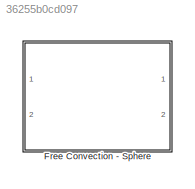
MODEL slx_36255b0cd097
KIND library
CONFIG AbsTol = auto
CONFIG FixedStep = auto
CONFIG MaxStep = auto
CONFIG MinStep = auto
CONFIG RelTol = 1e-3
CONFIG SampleTimeConstraint = Unconstrained
CONFIG Solver = ode45
CONFIG SolverMode = Auto
CONFIG SolverName = ode45
CONFIG StartTime = 0.0
CONFIG StopTime = 10.0
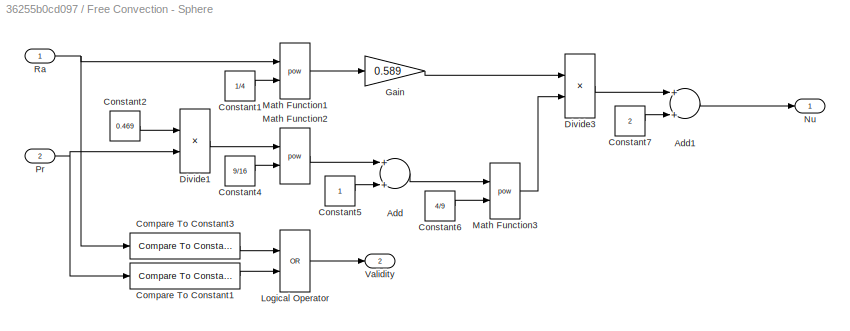
BLOCK [SubSystem] Free Convection - Sphere
  Ports = [2, 2]
  RequestExecContextInheritance = off
BLOCK [Sum] Free Convection - Sphere/Add
  InputSameDT = off
  OutDataTypeStr = Inherit: Inherit via internal rule
  Ports = [2, 1]
  SaturateOnIntegerOverflow = off
BLOCK [Sum] Free Convection - Sphere/Add1
  InputSameDT = off
  OutDataTypeStr = Inherit: Inherit via internal rule
  Ports = [2, 1]
  SaturateOnIntegerOverflow = off
BLOCK [Reference] Free Convection - Sphere/Compare To Constant1  REF=simulink/Logic and Bit
Operations/Compare
To Constant
  OutDataTypeStr = boolean
  Ports = [1, 1]
  SourceBlock = simulink/Logic and Bit\nOperations/Compare\nTo Constant
  SourceType = Compare To Constant
  ZeroCross = on
  const = 0.7
  relop = <
BLOCK [Reference] Free Convection - Sphere/Compare To Constant3  REF=simulink/Logic and Bit
Operations/Compare
To Constant
  OutDataTypeStr = boolean
  Ports = [1, 1]
  SourceBlock = simulink/Logic and Bit\nOperations/Compare\nTo Constant
  SourceType = Compare To Constant
  ZeroCross = on
  const = 10^11
  relop = >
BLOCK [Constant] Free Convection - Sphere/Constant1
  Value = 1/4
BLOCK [Constant] Free Convection - Sphere/Constant2
  Value = 0.469
BLOCK [Constant] Free Convection - Sphere/Constant4
  Value = 9/16
BLOCK [Constant] Free Convection - Sphere/Constant5
BLOCK [Constant] Free Convection - Sphere/Constant6
  Value = 4/9
BLOCK [Constant] Free Convection - Sphere/Constant7
  Value = 2
BLOCK [Product] Free Convection - Sphere/Divide1
  InputSameDT = off
  Inputs = */
  OutDataTypeStr = Inherit: Inherit via internal rule
  Ports = [2, 1]
  RndMeth = Floor
  SaturateOnIntegerOverflow = off
BLOCK [Product] Free Convection - Sphere/Divide3
  InputSameDT = off
  Inputs = */
  OutDataTypeStr = Inherit: Inherit via internal rule
  Ports = [2, 1]
  RndMeth = Floor
  SaturateOnIntegerOverflow = off
BLOCK [Gain] Free Convection - Sphere/Gain
  Gain = 0.589
  OutDataTypeStr = Inherit: Inherit via internal rule
  ParamDataTypeStr = Inherit: Inherit via internal rule
  SaturateOnIntegerOverflow = off
BLOCK [Logic] Free Convection - Sphere/Logical Operator
  AllPortsSameDT = off
  Operator = OR
  OutDataTypeStr = boolean
  Ports = [2, 1]
BLOCK [Math] Free Convection - Sphere/Math Function1
  Operator = pow
  Ports = [2, 1]
BLOCK [Math] Free Convection - Sphere/Math Function2
  Operator = pow
  Ports = [2, 1]
BLOCK [Math] Free Convection - Sphere/Math Function3
  Operator = pow
  Ports = [2, 1]
BLOCK [Outport] Free Convection - Sphere/Nu
  IconDisplay = Port number
BLOCK [Inport] Free Convection - Sphere/Pr
  IconDisplay = Port number
  Port = 2
BLOCK [Inport] Free Convection - Sphere/Ra
  IconDisplay = Port number
BLOCK [Outport] Free Convection - Sphere/Validity
  IconDisplay = Port number
  Port = 2
LINE Free Convection - Sphere/Add1:1 -> Free Convection - Sphere/Nu:1
LINE Free Convection - Sphere/Add:1 -> Free Convection - Sphere/Math Function3:1
LINE Free Convection - Sphere/Compare To Constant1:1 -> Free Convection - Sphere/Logical Operator:2
LINE Free Convection - Sphere/Compare To Constant3:1 -> Free Convection - Sphere/Logical Operator:1
LINE Free Convection - Sphere/Constant1:1 -> Free Convection - Sphere/Math Function1:2
LINE Free Convection - Sphere/Constant2:1 -> Free Convection - Sphere/Divide1:1
LINE Free Convection - Sphere/Constant4:1 -> Free Convection - Sphere/Math Function2:2
LINE Free Convection - Sphere/Constant5:1 -> Free Convection - Sphere/Add:2
LINE Free Convection - Sphere/Constant6:1 -> Free Convection - Sphere/Math Function3:2
LINE Free Convection - Sphere/Constant7:1 -> Free Convection - Sphere/Add1:2
LINE Free Convection - Sphere/Divide1:1 -> Free Convection - Sphere/Math Function2:1
LINE Free Convection - Sphere/Divide3:1 -> Free Convection - Sphere/Add1:1
LINE Free Convection - Sphere/Gain:1 -> Free Convection - Sphere/Divide3:1
LINE Free Convection - Sphere/Logical Operator:1 -> Free Convection - Sphere/Validity:1
LINE Free Convection - Sphere/Math Function1:1 -> Free Convection - Sphere/Gain:1
LINE Free Convection - Sphere/Math Function2:1 -> Free Convection - Sphere/Add:1
LINE Free Convection - Sphere/Math Function3:1 -> Free Convection - Sphere/Divide3:2
NET Free Convection - Sphere/Pr:1 -> Free Convection - Sphere/Compare To Constant1:1, Free Convection - Sphere/Divide1:2
NET Free Convection - Sphere/Ra:1 -> Free Convection - Sphere/Compare To Constant3:1, Free Convection - Sphere/Math Function1:1
note: NET lines group one-source signal fan-out (src -> all destinations, sorted); 1:1 wires keep LINE
